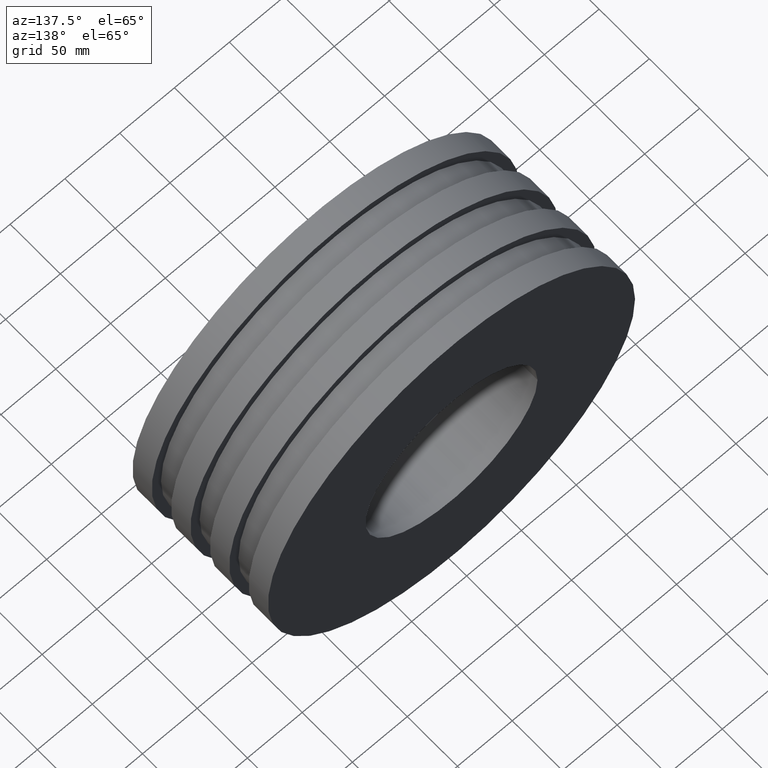
[diagram: clean part render]
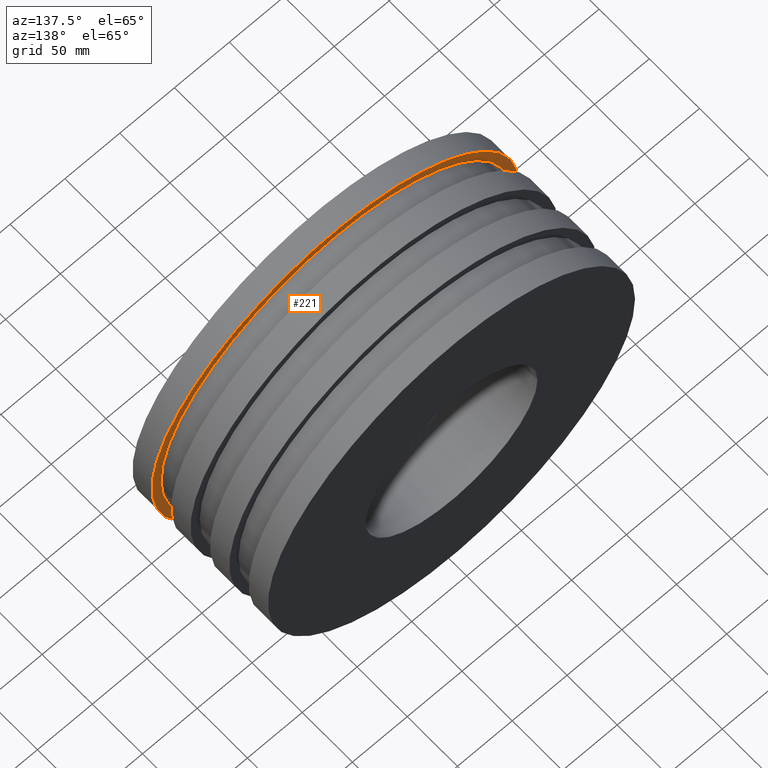
[diagram: same view with one face highlighted and labeled with its STEP entity id]
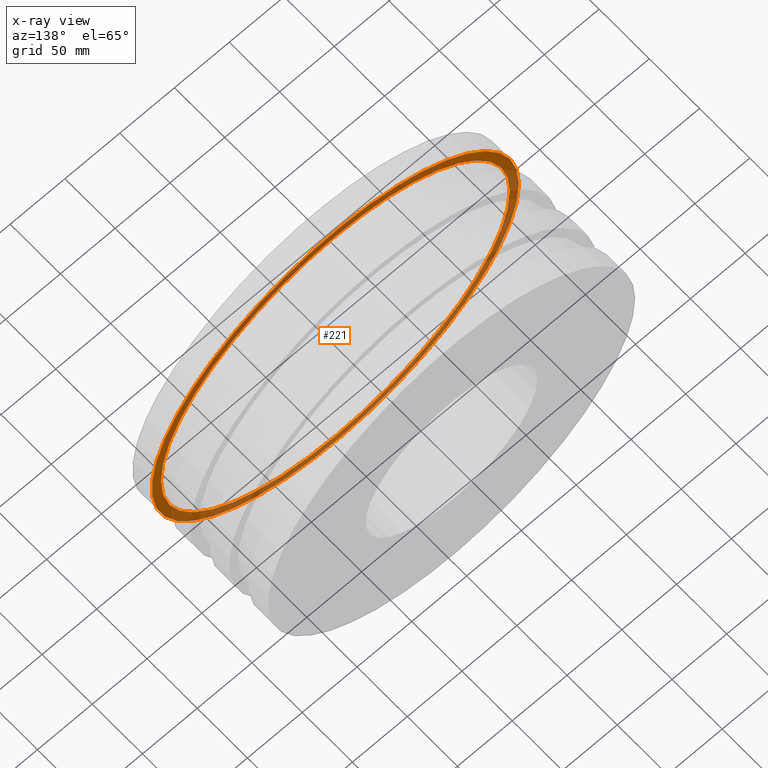
[diagram: x-ray of the same camera — body ghosted, the highlighted face saturated]
A machine part, auxiliary view. The second image highlights one B-rep face of the part: STEP entity #221.
The next image is the same camera in x-ray: the body ghosted, the highlighted face saturated — about 47% of this face is hidden behind the body in this view.
In plain terms, the highlighted planar face has unit normal (0, 1, 0).
Its self-contained STEP definition (entity closure, byte-faithful):
#31=FACE_BOUND('',#78,.T.);
#51=FACE_OUTER_BOUND('',#77,.T.);
#77=EDGE_LOOP('',(#177));
#78=EDGE_LOOP('',(#178));
#111=CIRCLE('',#249,167.5);
#112=CIRCLE('',#251,159.125);
#131=VERTEX_POINT('',#378);
#132=VERTEX_POINT('',#381);
#151=EDGE_CURVE('',#131,#131,#111,.T.);
#152=EDGE_CURVE('',#132,#132,#112,.T.);
#177=ORIENTED_EDGE('',*,*,#151,.T.);
#178=ORIENTED_EDGE('',*,*,#152,.F.);
#208=PLANE('',#250);
#221=ADVANCED_FACE('',(#51,#31),#208,.T.);
#249=AXIS2_PLACEMENT_3D('',#379,#303,#304);
#250=AXIS2_PLACEMENT_3D('',#380,#305,#306);
#251=AXIS2_PLACEMENT_3D('',#382,#307,#308);
#303=DIRECTION('center_axis',(0.,1.,0.));
#304=DIRECTION('ref_axis',(1.,0.,0.));
#305=DIRECTION('center_axis',(0.,1.,0.));
#306=DIRECTION('ref_axis',(0.,0.,1.));
#307=DIRECTION('center_axis',(0.,1.,0.));
#308=DIRECTION('ref_axis',(1.,0.,0.));
#378=CARTESIAN_POINT('',(-167.5,19.2857142857143,0.));
#379=CARTESIAN_POINT('Origin',(0.,19.2857142857143,0.));
#380=CARTESIAN_POINT('Origin',(-159.125,19.2857142857143,0.));
#381=CARTESIAN_POINT('',(-159.125,19.2857142857143,0.));
#382=CARTESIAN_POINT('Origin',(0.,19.2857142857143,0.));